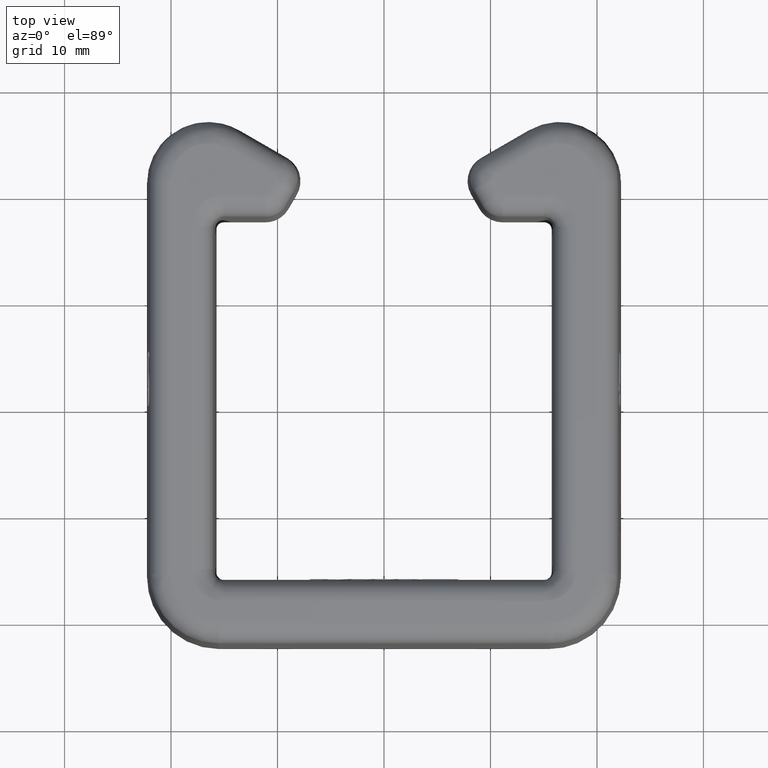
[diagram: clean part render]
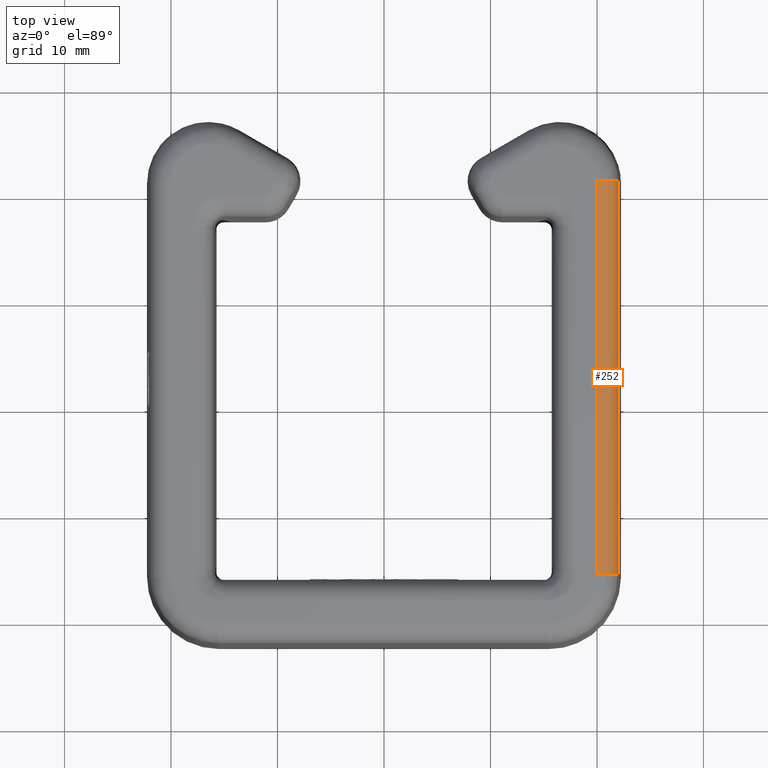
[diagram: same view with one face highlighted and labeled with its STEP entity id]
A machine part, top view. The second image highlights one B-rep face of the part: STEP entity #252.
In plain terms, the highlighted face is a freeform B-spline surface patch.
Its self-contained STEP definition (entity closure, byte-faithful):
#252=ADVANCED_FACE('',(#554),#555,.T.);
#554=FACE_OUTER_BOUND('',#1630,.T.);
#555=(B_SPLINE_SURFACE(3,1,((#1632,#1633),(#1634,#1635),(#1636,#1637),(#1638,#1639)),.UNSPECIFIED.,.F.,.F.,.F.)B_SPLINE_SURFACE_WITH_KNOTS((4,4),(2,2),(0.0,1.0),(0.0,1.0),.UNSPECIFIED.)RATIONAL_B_SPLINE_SURFACE(((1.0,1.0),(0.808833632769453,0.808833632769453),(0.808833632769453,0.808833632769453),(1.0,1.0)))BOUNDED_SURFACE()REPRESENTATION_ITEM('')GEOMETRIC_REPRESENTATION_ITEM()SURFACE());
#1630=EDGE_LOOP('',(#3456,#3457,#3458,#3459));
#1632=CARTESIAN_POINT('',(19.9846054737644,4.50000000001398,17.0));
#1633=CARTESIAN_POINT('',(19.9846054737551,41.500000000018,17.0));
#1634=CARTESIAN_POINT('',(21.1400293432359,4.50000000001427,17.0));
#1635=CARTESIAN_POINT('',(21.1400293432266,41.5000000000183,17.0));
#1636=CARTESIAN_POINT('',(21.9641359370999,4.50000000001448,16.1901527056943));
#1637=CARTESIAN_POINT('',(21.9641359370905,41.5000000000185,16.1901527056943));
#1638=CARTESIAN_POINT('',(21.9843008640772,4.50000000001448,15.0349048128745));
#1639=CARTESIAN_POINT('',(21.9843008640679,41.5000000000185,15.0349048128745));
#3456=ORIENTED_EDGE('',*,*,#4169,.T.);
#3457=ORIENTED_EDGE('',*,*,#4170,.T.);
#3458=ORIENTED_EDGE('',*,*,#4171,.F.);
#3459=ORIENTED_EDGE('',*,*,#4172,.T.);
#4169=EDGE_CURVE('',#4846,#4847,#4848,.T.);
#4170=EDGE_CURVE('',#4847,#4849,#4850,.T.);
#4171=EDGE_CURVE('',#4851,#4849,#4852,.T.);
#4172=EDGE_CURVE('',#4851,#4846,#4853,.T.);
#4846=VERTEX_POINT('',#6850);
#4847=VERTEX_POINT('',#6851);
#4848=(B_SPLINE_CURVE(3,(#6853,#6854,#6855,#6856),.UNSPECIFIED.,.F.,.F.)B_SPLINE_CURVE_WITH_KNOTS((4,4),(-1.0,0.0),.UNSPECIFIED.)RATIONAL_B_SPLINE_CURVE((1.0,0.808833632769453,0.808833632769453,1.0))BOUNDED_CURVE()REPRESENTATION_ITEM('')GEOMETRIC_REPRESENTATION_ITEM()CURVE());
#4849=VERTEX_POINT('',#6863);
#4850=B_SPLINE_CURVE_WITH_KNOTS('',1,(#6864,#6865),.UNSPECIFIED.,.F.,.F.,(2,2),(-1.0,0.0),.UNSPECIFIED.);
#4851=VERTEX_POINT('',#6866);
#4852=(B_SPLINE_CURVE(3,(#6868,#6869,#6870,#6871),.UNSPECIFIED.,.F.,.F.)B_SPLINE_CURVE_WITH_KNOTS((4,4),(0.0636142352706249,0.936385764730642),.UNSPECIFIED.)RATIONAL_B_SPLINE_CURVE((0.957077234090168,0.774116256089919,0.774116256090185,0.957077234090965))BOUNDED_CURVE()REPRESENTATION_ITEM('')GEOMETRIC_REPRESENTATION_ITEM()CURVE());
#4853=B_SPLINE_CURVE_WITH_KNOTS('',1,(#6878,#6879),.UNSPECIFIED.,.F.,.F.,(2,2),(0.0,1.0),.UNSPECIFIED.);
#6850=CARTESIAN_POINT('',(21.9843008640685,41.5000000000185,15.0349048128746));
#6851=CARTESIAN_POINT('',(19.9846054737556,41.500000000018,17.0));
#6853=CARTESIAN_POINT('',(21.9843008640679,41.5000000000185,15.0349048128745));
#6854=CARTESIAN_POINT('',(21.9641359370905,41.5000000000185,16.1901527056943));
#6855=CARTESIAN_POINT('',(21.1400293432266,41.5000000000183,17.0));
#6856=CARTESIAN_POINT('',(19.9846054737551,41.500000000018,17.0));
#6863=CARTESIAN_POINT('',(19.9846054737728,4.50000000001399,17.0));
#6864=CARTESIAN_POINT('',(19.9846054737551,41.500000000018,17.0));
#6865=CARTESIAN_POINT('',(19.9846054737644,4.50000000001398,17.0));
#6866=CARTESIAN_POINT('',(21.9843008640803,4.5000000000145,15.0349048128747));
#6868=CARTESIAN_POINT('',(21.9843008640833,4.50000000001448,15.034904812875));
#6869=CARTESIAN_POINT('',(21.9641359371057,4.50000000001448,16.1901527056964));
#6870=CARTESIAN_POINT('',(21.1400293432396,4.50000000001427,17.0000000000021));
#6871=CARTESIAN_POINT('',(19.9846054737669,4.50000000001398,17.0));
#6878=CARTESIAN_POINT('',(21.9843008640772,4.50000000001448,15.0349048128745));
#6879=CARTESIAN_POINT('',(21.9843008640679,41.5000000000185,15.0349048128745));